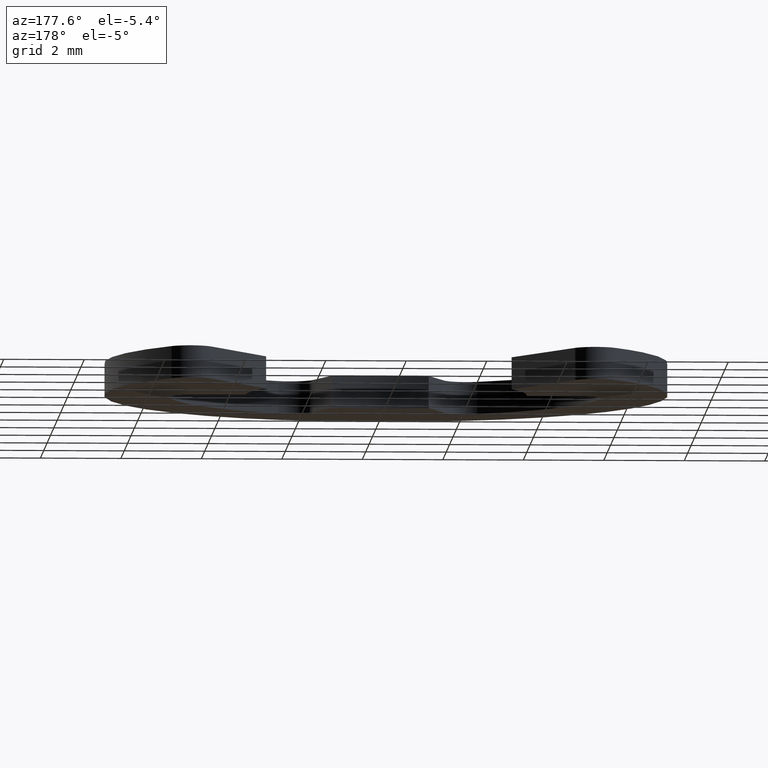
[diagram: clean part render]
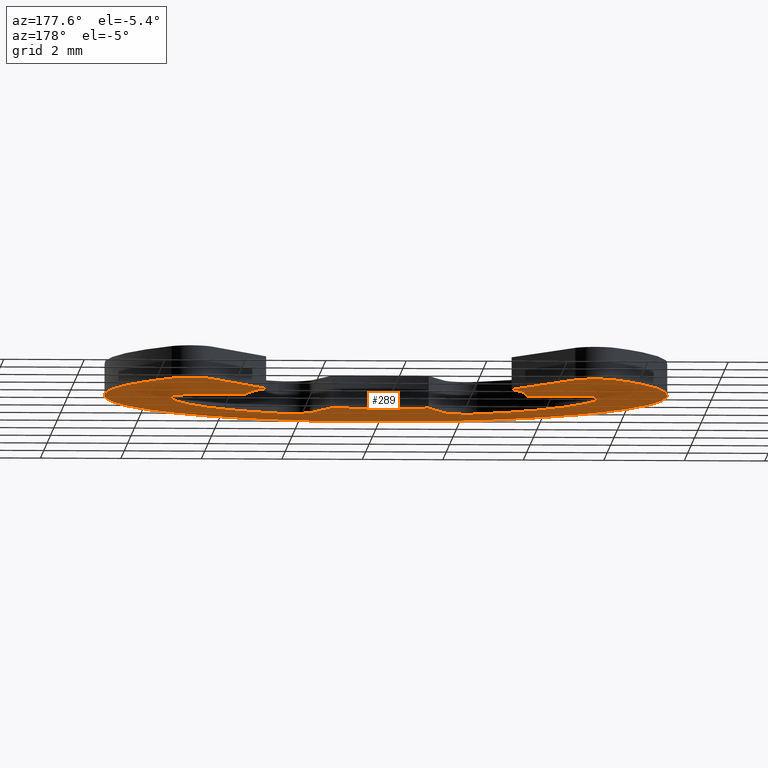
[diagram: same view with one face highlighted and labeled with its STEP entity id]
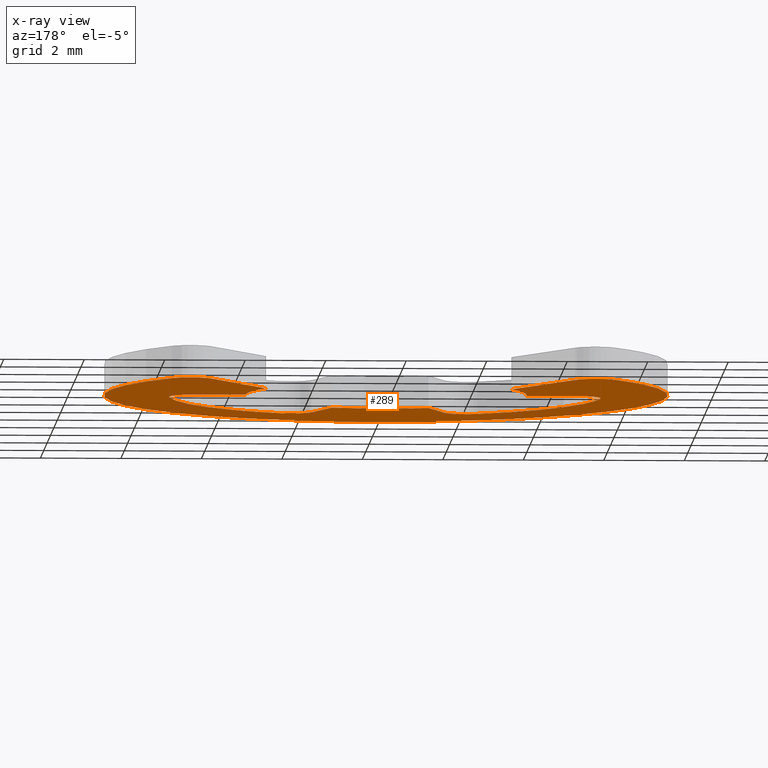
[diagram: x-ray of the same camera — body ghosted, the highlighted face saturated]
A machine part, auxiliary view. The second image highlights one B-rep face of the part: STEP entity #289.
The next image is the same camera in x-ray: the body ghosted, the highlighted face saturated — about 0% of this face is hidden behind the body in this view.
In plain terms, the highlighted face is a freeform B-spline surface patch.
Its self-contained STEP definition (entity closure, byte-faithful):
#44=CARTESIAN_POINT('',(-7.680830195951259,-7.577049522920409,0.0));
#45=CARTESIAN_POINT('',(7.680830192763075,-7.577049522920409,0.0));
#46=CARTESIAN_POINT('',(-7.680830195951259,5.129593282450013,0.0));
#47=CARTESIAN_POINT('',(7.680830192763075,5.129593282450013,0.0));
#48=B_SPLINE_SURFACE_WITH_KNOTS('',1,1,((#44,#46),(#45,#47)),.UNSPECIFIED.,.F.,.F.,.U.,(2,2),(2,2),(0.0,15.361660388714339),(0.0,12.706642805370420),.UNSPECIFIED.);
#49=CARTESIAN_POINT('',(-5.505520051458170,4.323106401997531,0.0));
#50=VERTEX_POINT('',#49);
#51=CARTESIAN_POINT('',(-4.514004000000000,4.252556000000000,0.0));
#52=VERTEX_POINT('',#51);
#53=CARTESIAN_POINT('',(-5.505520051458169,4.323106401997530,0.0));
#54=CARTESIAN_POINT('',(-5.308784917364946,4.573650599816963,0.0));
#55=CARTESIAN_POINT('',(-4.991033556247954,4.551041297396017,0.0));
#56=CARTESIAN_POINT('',(-4.673282195130962,4.528431994975072,0.0));
#57=CARTESIAN_POINT('',(-4.514004000000000,4.252556000000000,0.0));
#65=(BOUNDED_CURVE()B_SPLINE_CURVE(2,(#53,#54,#55,#56,#57),.UNSPECIFIED.,.F.,.U.)B_SPLINE_CURVE_WITH_KNOTS((3,2,3),(0.0,0.500000000000000,1.0),.UNSPECIFIED.)CURVE()GEOMETRIC_REPRESENTATION_ITEM()RATIONAL_B_SPLINE_CURVE((1.0,0.883234793916496,1.0,0.883234793916496,1.0))REPRESENTATION_ITEM(''));
#66=EDGE_CURVE('',#50,#52,#65,.T.);
#67=ORIENTED_EDGE('',*,*,#66,.T.);
#68=CARTESIAN_POINT('',(-3.050001544194635,1.716825728025515,0.0));
#69=VERTEX_POINT('',#68);
#70=CARTESIAN_POINT('',(-3.050001544194635,1.716825728025515,0.0));
#71=CARTESIAN_POINT('',(-4.514004000000000,4.252556000000000,0.0));
#72=QUASI_UNIFORM_CURVE('',1,(#70,#71),.UNSPECIFIED.,.F.,.U.);
#73=EDGE_CURVE('',#69,#52,#72,.T.);
#74=ORIENTED_EDGE('',*,*,#73,.F.);
#75=CARTESIAN_POINT('',(-3.500000000000000,0.0,0.0));
#76=VERTEX_POINT('',#75);
#77=CARTESIAN_POINT('',(-3.500000000000000,0.0,0.0));
#78=CARTESIAN_POINT('',(-3.500000000000000,0.917387577322797,0.0));
#79=CARTESIAN_POINT('',(-3.050001544194636,1.716825728025514,0.0));
#87=(BOUNDED_CURVE()B_SPLINE_CURVE(2,(#77,#78,#79),.UNSPECIFIED.,.F.,.U.)CURVE()GEOMETRIC_REPRESENTATION_ITEM()QUASI_UNIFORM_CURVE()RATIONAL_B_SPLINE_CURVE((1.0,0.967323372153035,1.0))REPRESENTATION_ITEM(''));
#88=EDGE_CURVE('',#76,#69,#87,.T.);
#89=ORIENTED_EDGE('',*,*,#88,.F.);
#90=CARTESIAN_POINT('',(-4.762352359916260,0.0,0.0));
#91=VERTEX_POINT('',#90);
#92=CARTESIAN_POINT('',(-4.762352359916260,0.0,0.0));
#93=CARTESIAN_POINT('',(-3.500000000000000,0.0,0.0));
#94=QUASI_UNIFORM_CURVE('',1,(#92,#93),.UNSPECIFIED.,.F.,.U.);
#95=EDGE_CURVE('',#91,#76,#94,.T.);
#96=ORIENTED_EDGE('',*,*,#95,.F.);
#97=CARTESIAN_POINT('',(-5.357646404905800,-0.675000000000000,0.0));
#98=VERTEX_POINT('',#97);
#99=CARTESIAN_POINT('',(-5.357646404905792,-0.674999999999999,0.0));
#100=CARTESIAN_POINT('',(-5.391502622129178,-0.406274606680622,0.0));
#101=CARTESIAN_POINT('',(-5.212352359916260,-0.203137303340311,0.0));
#102=CARTESIAN_POINT('',(-5.033202097703342,0.0,0.0));
#103=CARTESIAN_POINT('',(-4.762352359916260,0.0,0.0));
#111=(BOUNDED_CURVE()B_SPLINE_CURVE(2,(#99,#100,#101,#102,#103),.UNSPECIFIED.,.F.,.U.)B_SPLINE_CURVE_WITH_KNOTS((3,2,3),(0.0,0.500000000000000,1.0),.UNSPECIFIED.)CURVE()GEOMETRIC_REPRESENTATION_ITEM()RATIONAL_B_SPLINE_CURVE((1.0,0.911437827766148,1.0,0.911437827766148,1.0))REPRESENTATION_ITEM(''));
#112=EDGE_CURVE('',#98,#91,#111,.T.);
#113=ORIENTED_EDGE('',*,*,#112,.F.);
#114=CARTESIAN_POINT('',(-2.466716259072880,-4.803676810238750,0.0));
#115=VERTEX_POINT('',#114);
#116=CARTESIAN_POINT('',(-2.466716259072878,-4.803676810238748,0.0));
#117=CARTESIAN_POINT('',(-5.001469554906101,-3.502066103572656,0.0));
#118=CARTESIAN_POINT('',(-5.357646404905796,-0.674999999999999,0.0));
#126=(BOUNDED_CURVE()B_SPLINE_CURVE(2,(#116,#117,#118),.UNSPECIFIED.,.F.,.U.)CURVE()GEOMETRIC_REPRESENTATION_ITEM()QUASI_UNIFORM_CURVE()RATIONAL_B_SPLINE_CURVE((1.0,0.884424314091896,1.0))REPRESENTATION_ITEM(''));
#127=EDGE_CURVE('',#115,#98,#126,.T.);
#128=ORIENTED_EDGE('',*,*,#127,.F.);
#129=CARTESIAN_POINT('',(-1.628820000000000,-4.475144000000000,0.0));
#130=VERTEX_POINT('',#129);
#131=CARTESIAN_POINT('',(-1.628820000000000,-4.475144000000000,0.0));
#132=CARTESIAN_POINT('',(-1.721455040402783,-4.729660935348904,0.0));
#133=CARTESIAN_POINT('',(-1.973615335047506,-4.828531087035394,0.0));
#134=CARTESIAN_POINT('',(-2.225775629692229,-4.927401238721886,0.0));
#135=CARTESIAN_POINT('',(-2.466716259072879,-4.803676810238747,0.0));
#143=(BOUNDED_CURVE()B_SPLINE_CURVE(2,(#131,#132,#133,#134,#135),.UNSPECIFIED.,.F.,.U.)B_SPLINE_CURVE_WITH_KNOTS((3,2,3),(0.0,0.500000000000000,1.0),.UNSPECIFIED.)CURVE()GEOMETRIC_REPRESENTATION_ITEM()RATIONAL_B_SPLINE_CURVE((1.0,0.911437259242175,1.0,0.911437259242175,1.0))REPRESENTATION_ITEM(''));
#144=EDGE_CURVE('',#130,#115,#143,.T.);
#145=ORIENTED_EDGE('',*,*,#144,.F.);
#146=CARTESIAN_POINT('',(-1.197072395923980,-3.288923483287020,0.0));
#147=VERTEX_POINT('',#146);
#148=CARTESIAN_POINT('',(-1.197072395923980,-3.288923483287020,0.0));
#149=CARTESIAN_POINT('',(-1.628820000000000,-4.475144000000000,0.0));
#150=QUASI_UNIFORM_CURVE('',1,(#148,#149),.UNSPECIFIED.,.F.,.U.);
#151=EDGE_CURVE('',#147,#130,#150,.T.);
#152=ORIENTED_EDGE('',*,*,#151,.F.);
#153=CARTESIAN_POINT('',(1.197069000000000,-3.288924999999810,0.0));
#154=VERTEX_POINT('',#153);
#155=CARTESIAN_POINT('',(1.197069000000000,-3.288924999999810,0.0));
#156=CARTESIAN_POINT('',(-0.000001973981110,-3.724622265994098,0.0));
#157=CARTESIAN_POINT('',(-1.197072395923980,-3.288923483287019,0.0));
#165=(BOUNDED_CURVE()B_SPLINE_CURVE(2,(#155,#156,#157),.UNSPECIFIED.,.F.,.U.)CURVE()GEOMETRIC_REPRESENTATION_ITEM()QUASI_UNIFORM_CURVE()RATIONAL_B_SPLINE_CURVE((1.0,0.939692605060815,1.0))REPRESENTATION_ITEM(''));
#166=EDGE_CURVE('',#154,#147,#165,.T.);
#167=ORIENTED_EDGE('',*,*,#166,.F.);
#168=CARTESIAN_POINT('',(1.628819395293825,-4.475147997431360,0.0));
#169=VERTEX_POINT('',#168);
#170=CARTESIAN_POINT('',(1.628819395293825,-4.475147997431360,0.0));
#171=CARTESIAN_POINT('',(1.197069000000000,-3.288924999999810,0.0));
#172=QUASI_UNIFORM_CURVE('',1,(#170,#171),.UNSPECIFIED.,.F.,.U.);
#173=EDGE_CURVE('',#169,#154,#172,.T.);
#174=ORIENTED_EDGE('',*,*,#173,.F.);
#175=CARTESIAN_POINT('',(2.466713181127335,-4.803678390780620,0.0));
#176=VERTEX_POINT('',#175);
#177=CARTESIAN_POINT('',(2.466713181127335,-4.803678390780620,0.0));
#178=CARTESIAN_POINT('',(2.225773561045906,-4.927401743901641,0.0));
#179=CARTESIAN_POINT('',(1.973614424377073,-4.828532444182820,0.0));
#180=CARTESIAN_POINT('',(1.721455287708239,-4.729663144464000,0.0));
#181=CARTESIAN_POINT('',(1.628819395293824,-4.475147997431360,0.0));
#189=(BOUNDED_CURVE()B_SPLINE_CURVE(2,(#177,#178,#179,#180,#181),.UNSPECIFIED.,.F.,.U.)B_SPLINE_CURVE_WITH_KNOTS((3,2,3),(0.0,0.500000000000000,1.0),.UNSPECIFIED.)CURVE()GEOMETRIC_REPRESENTATION_ITEM()RATIONAL_B_SPLINE_CURVE((1.0,0.911438050522378,1.0,0.911438050522378,1.0))REPRESENTATION_ITEM(''));
#190=EDGE_CURVE('',#176,#169,#189,.T.);
#191=ORIENTED_EDGE('',*,*,#190,.F.);
#192=CARTESIAN_POINT('',(5.357645964854310,-0.674999636050790,0.0));
#193=VERTEX_POINT('',#192);
#194=CARTESIAN_POINT('',(5.357645964854310,-0.674999636050790,0.0));
#195=CARTESIAN_POINT('',(5.001469452492112,-3.502068208566773,0.0));
#196=CARTESIAN_POINT('',(2.466713181127333,-4.803678390780618,0.0));
#204=(BOUNDED_CURVE()B_SPLINE_CURVE(2,(#194,#195,#196),.UNSPECIFIED.,.F.,.U.)CURVE()GEOMETRIC_REPRESENTATION_ITEM()QUASI_UNIFORM_CURVE()RATIONAL_B_SPLINE_CURVE((1.0,0.884424151352078,1.0))REPRESENTATION_ITEM(''));
#205=EDGE_CURVE('',#193,#176,#204,.T.);
#206=ORIENTED_EDGE('',*,*,#205,.F.);
#207=CARTESIAN_POINT('',(4.762352000000000,0.0,0.0));
#208=VERTEX_POINT('',#207);
#209=CARTESIAN_POINT('',(4.762352000000000,0.0,0.0));
#210=CARTESIAN_POINT('',(5.033201930716102,0.000000199055792,0.0));
#211=CARTESIAN_POINT('',(5.212352212016909,-0.203137043744975,0.0));
#212=CARTESIAN_POINT('',(5.391502493317716,-0.406274286545742,0.0));
#213=CARTESIAN_POINT('',(5.357645964854310,-0.674999636050790,0.0));
#221=(BOUNDED_CURVE()B_SPLINE_CURVE(2,(#209,#210,#211,#212,#213),.UNSPECIFIED.,.F.,.U.)B_SPLINE_CURVE_WITH_KNOTS((3,2,3),(0.0,0.500000000000000,1.0),.UNSPECIFIED.)CURVE()GEOMETRIC_REPRESENTATION_ITEM()RATIONAL_B_SPLINE_CURVE((1.0,0.911437717864374,1.0,0.911437717864374,1.0))REPRESENTATION_ITEM(''));
#222=EDGE_CURVE('',#208,#193,#221,.T.);
#223=ORIENTED_EDGE('',*,*,#222,.F.);
#224=CARTESIAN_POINT('',(3.500000000000000,8.572244E-016,0.0));
#225=VERTEX_POINT('',#224);
#226=CARTESIAN_POINT('',(3.500000000000000,8.572244E-016,0.0));
#227=CARTESIAN_POINT('',(4.762352000000000,0.0,0.0));
#228=QUASI_UNIFORM_CURVE('',1,(#226,#227),.UNSPECIFIED.,.F.,.U.);
#229=EDGE_CURVE('',#225,#208,#228,.T.);
#230=ORIENTED_EDGE('',*,*,#229,.F.);
#231=CARTESIAN_POINT('',(3.049997000000000,1.716827000000195,0.0));
#232=VERTEX_POINT('',#231);
#233=CARTESIAN_POINT('',(3.049997000000000,1.716827000000195,0.0));
#234=CARTESIAN_POINT('',(3.499998546452678,0.917388542506622,0.0));
#235=CARTESIAN_POINT('',(3.500000000000000,8.572244E-016,0.0));
#243=(BOUNDED_CURVE()B_SPLINE_CURVE(2,(#233,#234,#235),.UNSPECIFIED.,.F.,.U.)CURVE()GEOMETRIC_REPRESENTATION_ITEM()QUASI_UNIFORM_CURVE()RATIONAL_B_SPLINE_CURVE((1.0,0.967323251267172,1.0))REPRESENTATION_ITEM(''));
#244=EDGE_CURVE('',#232,#225,#243,.T.);
#245=ORIENTED_EDGE('',*,*,#244,.F.);
#246=CARTESIAN_POINT('',(4.514004202788870,4.252553770864495,0.0));
#247=VERTEX_POINT('',#246);
#248=CARTESIAN_POINT('',(4.514004202788870,4.252553770864495,0.0));
#249=CARTESIAN_POINT('',(3.049997000000000,1.716827000000195,0.0));
#250=QUASI_UNIFORM_CURVE('',1,(#248,#249),.UNSPECIFIED.,.F.,.U.);
#251=EDGE_CURVE('',#247,#232,#250,.T.);
#252=ORIENTED_EDGE('',*,*,#251,.F.);
#253=CARTESIAN_POINT('',(5.505519803872589,4.323106717300275,0.0));
#254=VERTEX_POINT('',#253);
#255=CARTESIAN_POINT('',(4.514004202788867,4.252553770864496,0.0));
#256=CARTESIAN_POINT('',(4.673281809844327,4.528429733622624,0.0));
#257=CARTESIAN_POINT('',(4.991032795902336,4.551039771132551,0.0));
#258=CARTESIAN_POINT('',(5.308783781960344,4.573649808642479,0.0));
#259=CARTESIAN_POINT('',(5.505519803872589,4.323106717300275,0.0));
#267=(BOUNDED_CURVE()B_SPLINE_CURVE(2,(#255,#256,#257,#258,#259),.UNSPECIFIED.,.F.,.U.)B_SPLINE_CURVE_WITH_KNOTS((3,2,3),(0.0,0.500000000000000,1.0),.UNSPECIFIED.)CURVE()GEOMETRIC_REPRESENTATION_ITEM()RATIONAL_B_SPLINE_CURVE((1.0,0.883234990200231,1.0,0.883234990200231,1.0))REPRESENTATION_ITEM(''));
#268=EDGE_CURVE('',#247,#254,#267,.T.);
#269=ORIENTED_EDGE('',*,*,#268,.T.);
#270=CARTESIAN_POINT('',(5.505519803872588,4.323106717300274,0.0));
#271=CARTESIAN_POINT('',(9.496636180435846,-0.759620054814019,0.0));
#272=CARTESIAN_POINT('',(4.748318226620992,-5.143294082466886,0.0));
#273=CARTESIAN_POINT('',(0.000000272806137,-9.526968110119752,0.0));
#274=CARTESIAN_POINT('',(-4.748317932063014,-5.143294354404462,0.0));
#275=CARTESIAN_POINT('',(-9.496636136932169,-0.759620598689168,0.0));
#276=CARTESIAN_POINT('',(-5.505520051458172,4.323106401997528,0.0));
#284=(BOUNDED_CURVE()B_SPLINE_CURVE(2,(#270,#271,#272,#273,#274,#275,#276),.UNSPECIFIED.,.F.,.U.)B_SPLINE_CURVE_WITH_KNOTS((3,2,2,3),(0.0,0.333333333333333,0.666666666666667,1.0),.UNSPECIFIED.)CURVE()GEOMETRIC_REPRESENTATION_ITEM()RATIONAL_B_SPLINE_CURVE((1.0,0.734756316919382,1.0,0.734756316919382,1.0,0.734756316919382,1.0))REPRESENTATION_ITEM(''));
#285=EDGE_CURVE('',#254,#50,#284,.T.);
#286=ORIENTED_EDGE('',*,*,#285,.T.);
#287=EDGE_LOOP('',(#67,#74,#89,#96,#113,#128,#145,#152,#167,#174,#191,#206,#223,#230,#245,#252,#269,#286));
#288=FACE_OUTER_BOUND('',#287,.T.);
#289=ADVANCED_FACE('',(#288),#48,.F.);